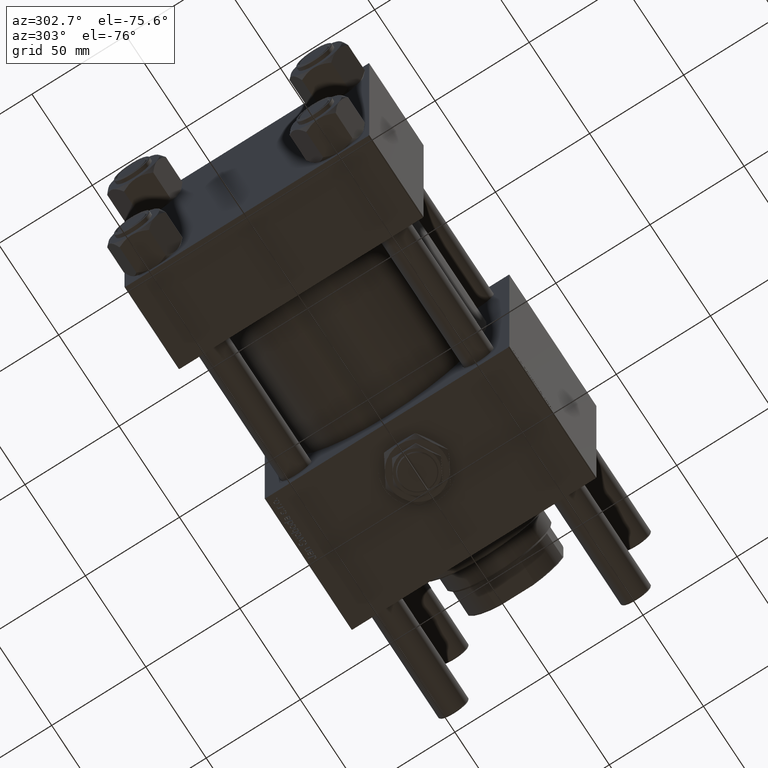
[diagram: clean part render]
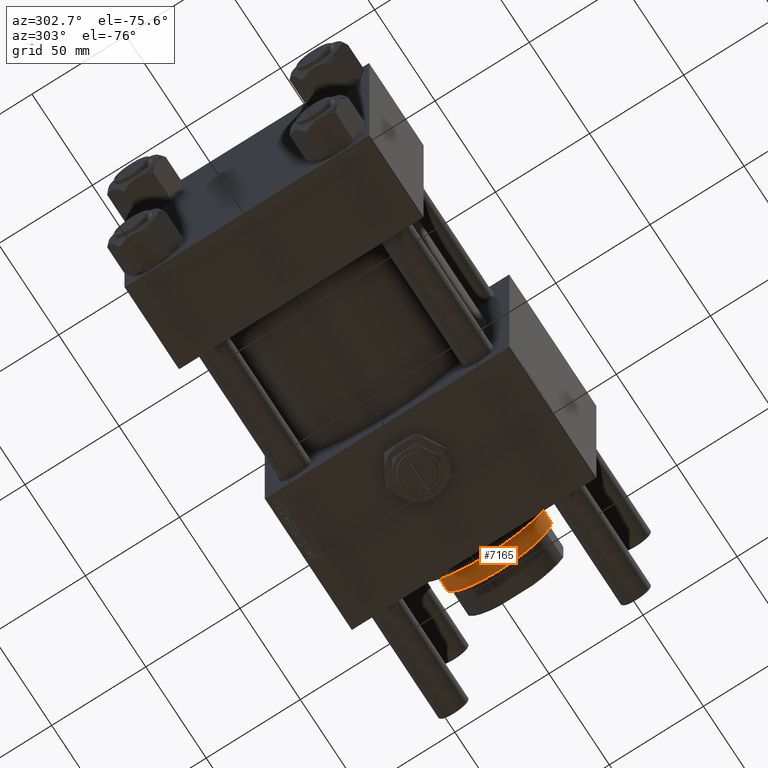
[diagram: same view with one face highlighted and labeled with its STEP entity id]
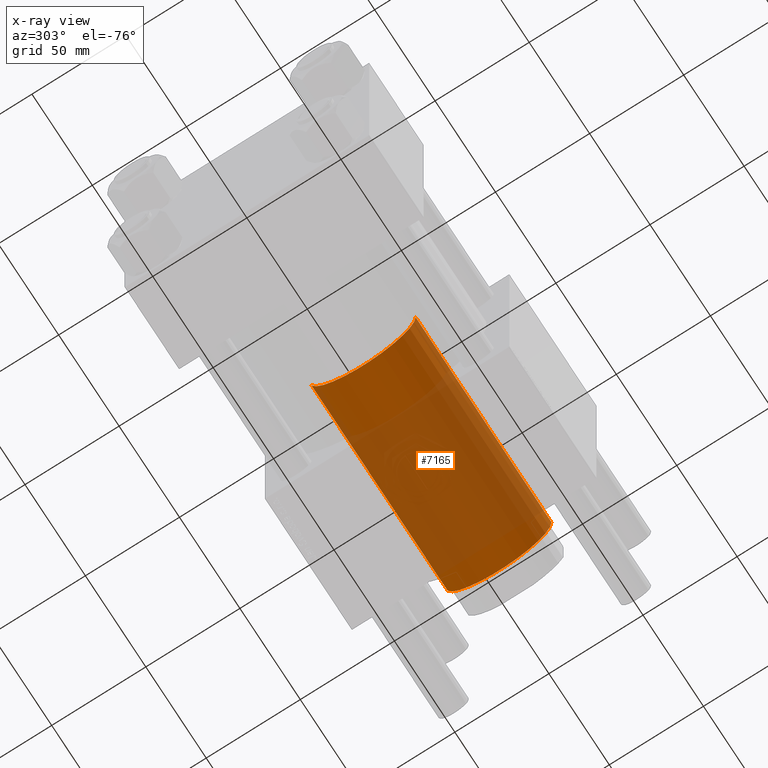
[diagram: x-ray of the same camera — body ghosted, the highlighted face saturated]
A machine part, auxiliary view. The second image highlights one B-rep face of the part: STEP entity #7165.
The next image is the same camera in x-ray: the body ghosted, the highlighted face saturated — about 68% of this face is hidden behind the body in this view.
In plain terms, the highlighted cylindrical surface (partial cylindrical patch) has radius 28 mm, axis along (-1, 0, 0).
Its self-contained STEP definition (entity closure, byte-faithful):
#1190 = EDGE_CURVE ( 'NONE', #10739, #47810, #30706, .T. ) ;
#4738 = CARTESIAN_POINT ( 'NONE',  ( 28.00000000000000000, 3.429011037612589276E-15, 164.0000000000000000 ) ) ;
#5200 = DIRECTION ( 'NONE',  ( 0.000000000000000000, 0.000000000000000000, 1.000000000000000000 ) ) ;
#6205 = DIRECTION ( 'NONE',  ( -0.000000000000000000, -0.000000000000000000, -1.000000000000000000 ) ) ;
#7165 = ADVANCED_FACE ( 'NONE', ( #55404 ), #14279, .T. ) ;
#7969 = VERTEX_POINT ( 'NONE', #23228 ) ;
#10739 = VERTEX_POINT ( 'NONE', #52615 ) ;
#11691 = CARTESIAN_POINT ( 'NONE',  ( 28.00000000000000000, 3.429011037612589276E-15, 163.5000000000000000 ) ) ;
#14019 = CARTESIAN_POINT ( 'NONE',  ( 0.000000000000000000, 0.000000000000000000, 163.5000000000000000 ) ) ;
#14159 = CARTESIAN_POINT ( 'NONE',  ( 0.000000000000000000, 0.000000000000000000, 51.00000000000000000 ) ) ;
#14279 = CYLINDRICAL_SURFACE ( 'NONE', #46081, 28.00000000000000000 ) ;
#14565 = CARTESIAN_POINT ( 'NONE',  ( 0.000000000000000000, 0.000000000000000000, 164.0000000000000000 ) ) ;
#14739 = DIRECTION ( 'NONE',  ( 1.000000000000000000, 0.000000000000000000, 0.000000000000000000 ) ) ;
#17229 = DIRECTION ( 'NONE',  ( -0.000000000000000000, -0.000000000000000000, -1.000000000000000000 ) ) ;
#20722 = ORIENTED_EDGE ( 'NONE', *, *, #35732, .T. ) ;
#21115 = VECTOR ( 'NONE', #6205, 1000.000000000000000 ) ;
#22572 = ORIENTED_EDGE ( 'NONE', *, *, #27221, .T. ) ;
#22823 = ORIENTED_EDGE ( 'NONE', *, *, #32609, .F. ) ;
#23228 = CARTESIAN_POINT ( 'NONE',  ( 28.00000000000000000, 3.429011037612589276E-15, 51.00000000000000000 ) ) ;
#25078 = VECTOR ( 'NONE', #17229, 1000.000000000000000 ) ;
#26474 = LINE ( 'NONE', #44647, #25078 ) ;
#27221 = EDGE_CURVE ( 'NONE', #47810, #7969, #37472, .T. ) ;
#28006 = DIRECTION ( 'NONE',  ( 0.000000000000000000, 0.000000000000000000, -1.000000000000000000 ) ) ;
#28040 = AXIS2_PLACEMENT_3D ( 'NONE', #14159, #5200, #14739 ) ;
#30462 = ORIENTED_EDGE ( 'NONE', *, *, #1190, .T. ) ;
#30706 = CIRCLE ( 'NONE', #45875, 28.00000000000000000 ) ;
#31163 = VERTEX_POINT ( 'NONE', #53031 ) ;
#32191 = DIRECTION ( 'NONE',  ( 1.000000000000000000, 0.000000000000000000, 0.000000000000000000 ) ) ;
#32448 = DIRECTION ( 'NONE',  ( -0.000000000000000000, -0.000000000000000000, -1.000000000000000000 ) ) ;
#32609 = EDGE_CURVE ( 'NONE', #10739, #31163, #26474, .T. ) ;
#32737 = DIRECTION ( 'NONE',  ( -1.000000000000000000, 0.000000000000000000, 0.000000000000000000 ) ) ;
#35732 = EDGE_CURVE ( 'NONE', #7969, #31163, #47050, .T. ) ;
#37472 = LINE ( 'NONE', #4738, #21115 ) ;
#44647 = CARTESIAN_POINT ( 'NONE',  ( -28.00000000000000000, 0.000000000000000000, 164.0000000000000000 ) ) ;
#45875 = AXIS2_PLACEMENT_3D ( 'NONE', #14019, #28006, #32191 ) ;
#46081 = AXIS2_PLACEMENT_3D ( 'NONE', #14565, #32448, #32737 ) ;
#47050 = CIRCLE ( 'NONE', #28040, 28.00000000000000000 ) ;
#47810 = VERTEX_POINT ( 'NONE', #11691 ) ;
#50378 = EDGE_LOOP ( 'NONE', ( #30462, #22572, #20722, #22823 ) ) ;
#52615 = CARTESIAN_POINT ( 'NONE',  ( -28.00000000000000000, 0.000000000000000000, 163.5000000000000000 ) ) ;
#53031 = CARTESIAN_POINT ( 'NONE',  ( -28.00000000000000000, 0.000000000000000000, 51.00000000000000000 ) ) ;
#55404 = FACE_OUTER_BOUND ( 'NONE', #50378, .T. ) ;